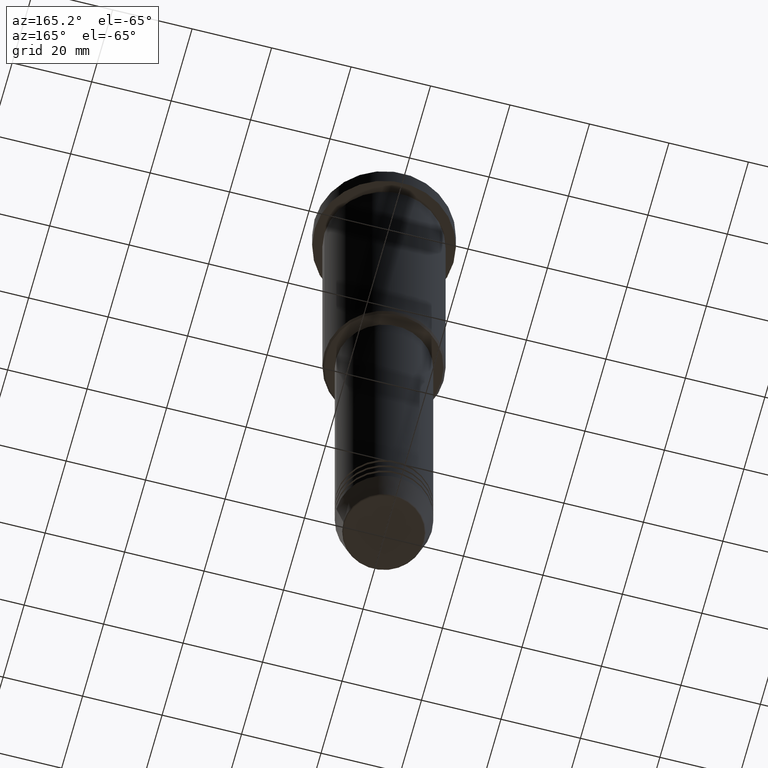
[diagram: clean part render]
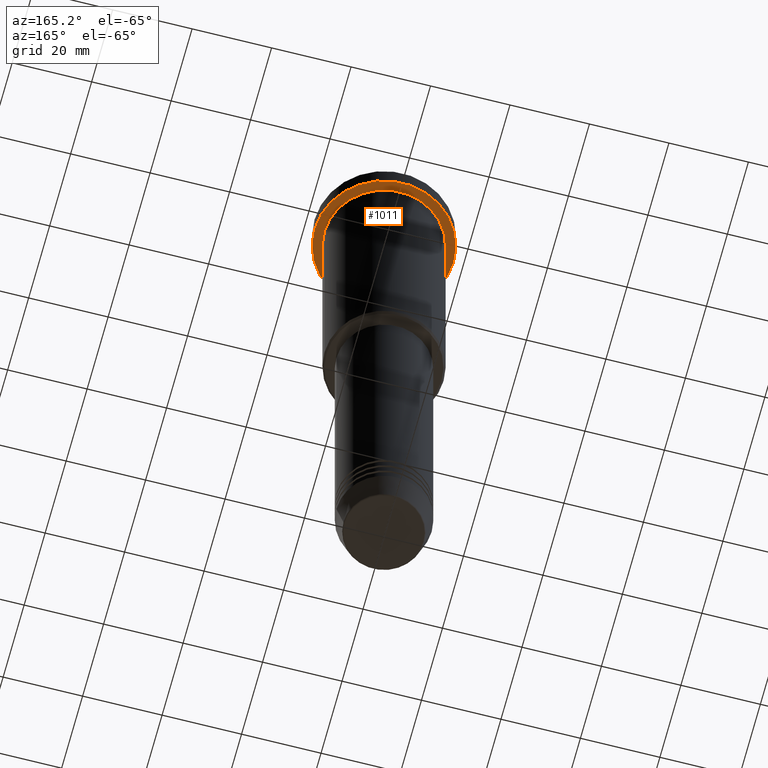
[diagram: same view with one face highlighted and labeled with its STEP entity id]
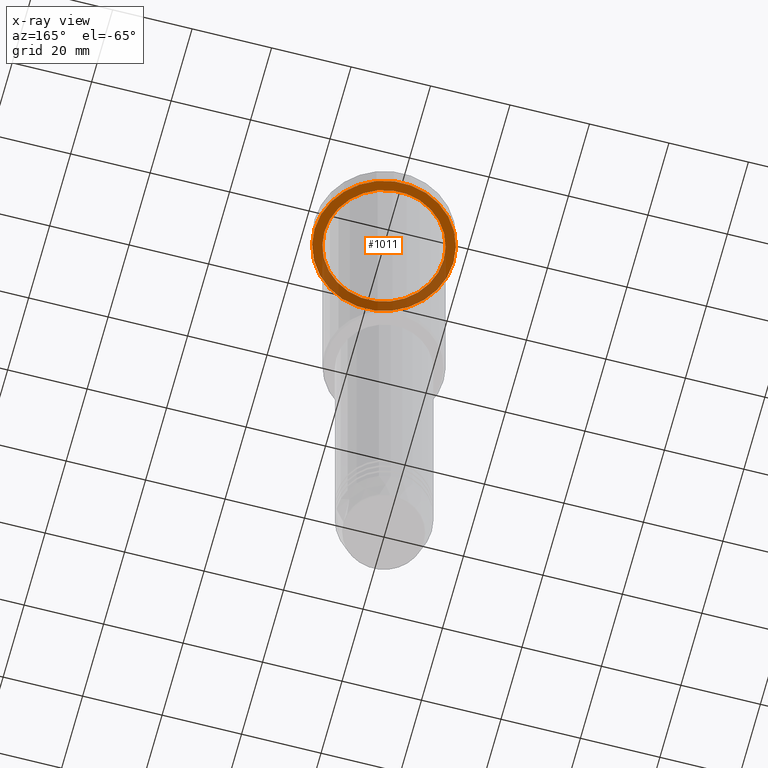
[diagram: x-ray of the same camera — body ghosted, the highlighted face saturated]
A machine part, auxiliary view. The second image highlights one B-rep face of the part: STEP entity #1011.
The next image is the same camera in x-ray: the body ghosted, the highlighted face saturated — about 37% of this face is hidden behind the body in this view.
In plain terms, the highlighted planar face has unit normal (0, 0, -1).
Its self-contained STEP definition (entity closure, byte-faithful):
#25 = AXIS2_PLACEMENT_3D ( 'NONE', #1175, #803, #632 ) ;
#26 = CARTESIAN_POINT ( 'NONE',  ( 17.50000000000000000, 0.000000000000000000, -5.999999999999995559 ) ) ;
#44 = VERTEX_POINT ( 'NONE', #348 ) ;
#58 = EDGE_CURVE ( 'NONE', #601, #543, #1030, .T. ) ;
#67 = CIRCLE ( 'NONE', #104, 17.50000000000000000 ) ;
#104 = AXIS2_PLACEMENT_3D ( 'NONE', #374, #707, #619 ) ;
#130 = EDGE_CURVE ( 'NONE', #44, #1131, #67, .T. ) ;
#136 = CIRCLE ( 'NONE', #162, 17.50000000000000000 ) ;
#162 = AXIS2_PLACEMENT_3D ( 'NONE', #1147, #709, #788 ) ;
#262 = ORIENTED_EDGE ( 'NONE', *, *, #349, .T. ) ;
#343 = DIRECTION ( 'NONE',  ( -1.000000000000000000, 0.000000000000000000, 0.000000000000000000 ) ) ;
#348 = CARTESIAN_POINT ( 'NONE',  ( -17.50000000000000000, 2.143131898507868248E-15, -5.999999999999995559 ) ) ;
#349 = EDGE_CURVE ( 'NONE', #543, #601, #791, .T. ) ;
#370 = DIRECTION ( 'NONE',  ( -1.000000000000000000, 0.000000000000000000, -0.000000000000000000 ) ) ;
#374 = CARTESIAN_POINT ( 'NONE',  ( 0.000000000000000000, 0.000000000000000000, -5.999999999999995559 ) ) ;
#375 = DIRECTION ( 'NONE',  ( 0.000000000000000000, 0.000000000000000000, -1.000000000000000000 ) ) ;
#452 = CARTESIAN_POINT ( 'NONE',  ( 0.000000000000000000, 17.50000000000000000, -5.999999999999995559 ) ) ;
#478 = ORIENTED_EDGE ( 'NONE', *, *, #58, .T. ) ;
#543 = VERTEX_POINT ( 'NONE', #546 ) ;
#546 = CARTESIAN_POINT ( 'NONE',  ( -15.00000000000000000, 0.000000000000000000, -5.999999999999994671 ) ) ;
#548 = FACE_OUTER_BOUND ( 'NONE', #836, .T. ) ;
#557 = ORIENTED_EDGE ( 'NONE', *, *, #809, .F. ) ;
#561 = PLANE ( 'NONE',  #1117 ) ;
#601 = VERTEX_POINT ( 'NONE', #780 ) ;
#619 = DIRECTION ( 'NONE',  ( 1.000000000000000000, 0.000000000000000000, 0.000000000000000000 ) ) ;
#632 = DIRECTION ( 'NONE',  ( -1.000000000000000000, 0.000000000000000000, 0.000000000000000000 ) ) ;
#691 = DIRECTION ( 'NONE',  ( -0.000000000000000000, -0.000000000000000000, 1.000000000000000000 ) ) ;
#707 = DIRECTION ( 'NONE',  ( -0.000000000000000000, -0.000000000000000000, 1.000000000000000000 ) ) ;
#709 = DIRECTION ( 'NONE',  ( -0.000000000000000000, -0.000000000000000000, 1.000000000000000000 ) ) ;
#780 = CARTESIAN_POINT ( 'NONE',  ( 15.00000000000000000, 1.836970198721029589E-15, -5.999999999999994671 ) ) ;
#788 = DIRECTION ( 'NONE',  ( 1.000000000000000000, 0.000000000000000000, 0.000000000000000000 ) ) ;
#791 = CIRCLE ( 'NONE', #914, 15.00000000000000000 ) ;
#803 = DIRECTION ( 'NONE',  ( -0.000000000000000000, -0.000000000000000000, 1.000000000000000000 ) ) ;
#809 = EDGE_CURVE ( 'NONE', #1131, #44, #136, .T. ) ;
#836 = EDGE_LOOP ( 'NONE', ( #557, #1157 ) ) ;
#867 = EDGE_LOOP ( 'NONE', ( #262, #478 ) ) ;
#914 = AXIS2_PLACEMENT_3D ( 'NONE', #965, #691, #343 ) ;
#965 = CARTESIAN_POINT ( 'NONE',  ( 0.000000000000000000, 0.000000000000000000, -5.999999999999995559 ) ) ;
#1011 = ADVANCED_FACE ( 'NONE', ( #1083, #548 ), #561, .T. ) ;
#1030 = CIRCLE ( 'NONE', #25, 15.00000000000000000 ) ;
#1083 = FACE_BOUND ( 'NONE', #867, .T. ) ;
#1117 = AXIS2_PLACEMENT_3D ( 'NONE', #452, #375, #370 ) ;
#1131 = VERTEX_POINT ( 'NONE', #26 ) ;
#1147 = CARTESIAN_POINT ( 'NONE',  ( 0.000000000000000000, 0.000000000000000000, -5.999999999999995559 ) ) ;
#1157 = ORIENTED_EDGE ( 'NONE', *, *, #130, .F. ) ;
#1175 = CARTESIAN_POINT ( 'NONE',  ( 0.000000000000000000, 0.000000000000000000, -5.999999999999995559 ) ) ;